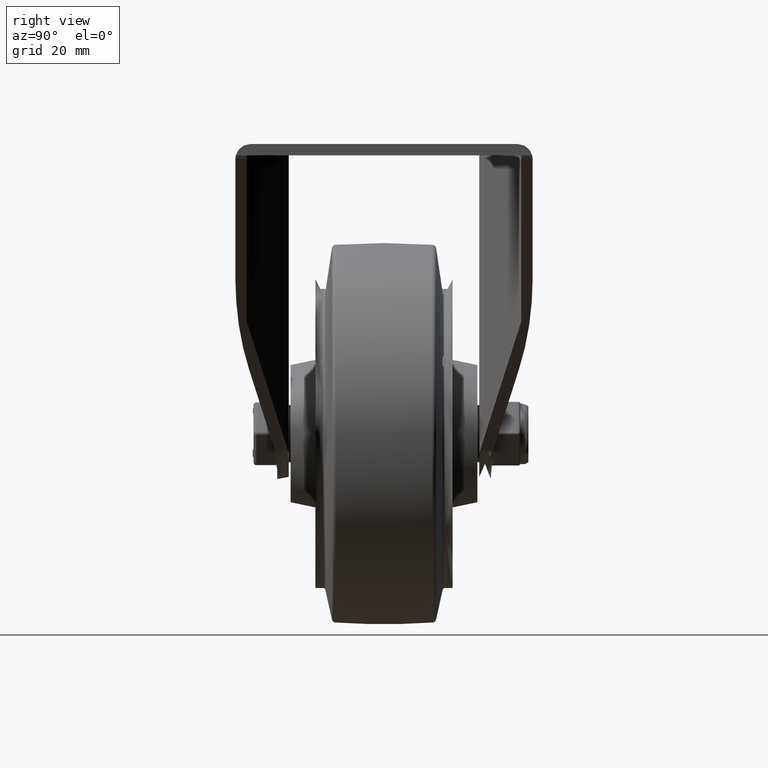
[diagram: clean part render]
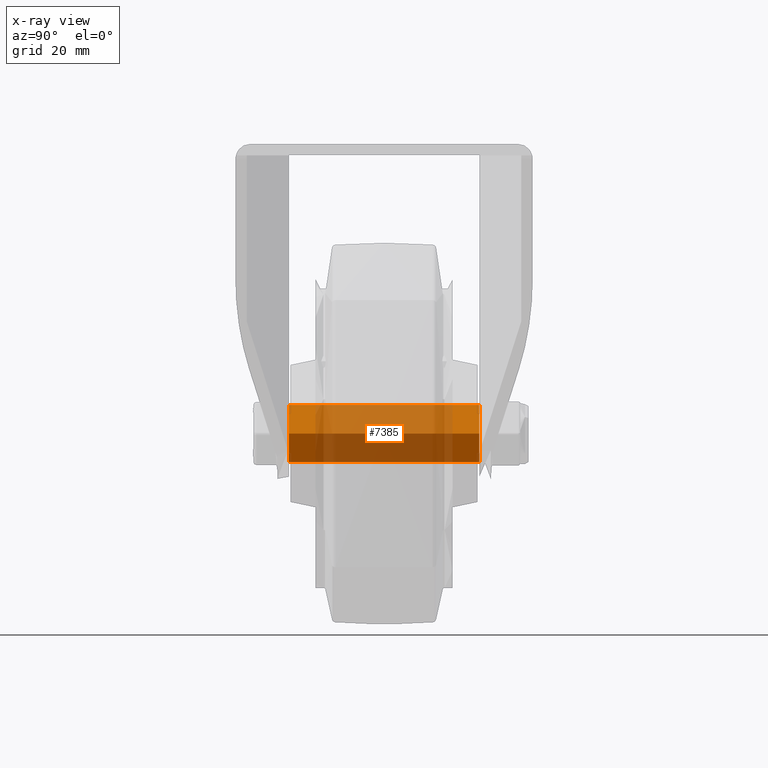
[diagram: x-ray — body ghosted, one internal face saturated and labeled with its STEP entity id]
A machine part, right view, then the same camera in x-ray: the body is ghosted and one INTERNAL B-rep face — a face not visible from any outside direction — is saturated and labeled: STEP entity #7385.
In plain terms, the highlighted cylindrical surface (bore or boss wall) has radius 7.5 mm, axis along (0, -1, 0).
Its self-contained STEP definition (entity closure, byte-faithful):
#572=CYLINDRICAL_SURFACE('',#8147,7.5);
#917=CIRCLE('',#8148,7.5);
#918=CIRCLE('',#8149,7.5);
#1197=FACE_OUTER_BOUND('',#1656,.T.);
#1656=EDGE_LOOP('',(#5772,#5773,#5774,#5775));
#2197=LINE('',#11546,#2748);
#2748=VECTOR('',#9551,7.5);
#3322=VERTEX_POINT('',#11543);
#3323=VERTEX_POINT('',#11545);
#4195=EDGE_CURVE('',#3322,#3322,#917,.T.);
#4196=EDGE_CURVE('',#3322,#3323,#2197,.T.);
#4197=EDGE_CURVE('',#3323,#3323,#918,.T.);
#5772=ORIENTED_EDGE('',*,*,#4195,.T.);
#5773=ORIENTED_EDGE('',*,*,#4196,.T.);
#5774=ORIENTED_EDGE('',*,*,#4197,.T.);
#5775=ORIENTED_EDGE('',*,*,#4196,.F.);
#7385=ADVANCED_FACE('',(#1197),#572,.T.);
#8147=AXIS2_PLACEMENT_3D('',#11542,#9547,#9548);
#8148=AXIS2_PLACEMENT_3D('',#11544,#9549,#9550);
#8149=AXIS2_PLACEMENT_3D('',#11547,#9552,#9553);
#9547=DIRECTION('center_axis',(0.,-1.,-3.49148336110938E-15));
#9548=DIRECTION('ref_axis',(1.,0.,0.));
#9549=DIRECTION('center_axis',(0.,1.,3.49148336110938E-15));
#9550=DIRECTION('ref_axis',(1.,0.,0.));
#9551=DIRECTION('',(0.,1.,3.49148336110938E-15));
#9552=DIRECTION('center_axis',(0.,-1.,-3.49148336110938E-15));
#9553=DIRECTION('ref_axis',(1.,0.,0.));
#11542=CARTESIAN_POINT('Origin',(0.,0.,0.));
#11543=CARTESIAN_POINT('',(-7.5,-25.,-8.6368598928374E-14));
#11544=CARTESIAN_POINT('Origin',(0.,-25.,-8.72870840277346E-14));
#11545=CARTESIAN_POINT('',(-7.5,25.,8.82055691270951E-14));
#11546=CARTESIAN_POINT('',(-7.5,3.20687544184413E-30,-9.18485099360515E-16));
#11547=CARTESIAN_POINT('Origin',(0.,25.,8.72870840277346E-14));